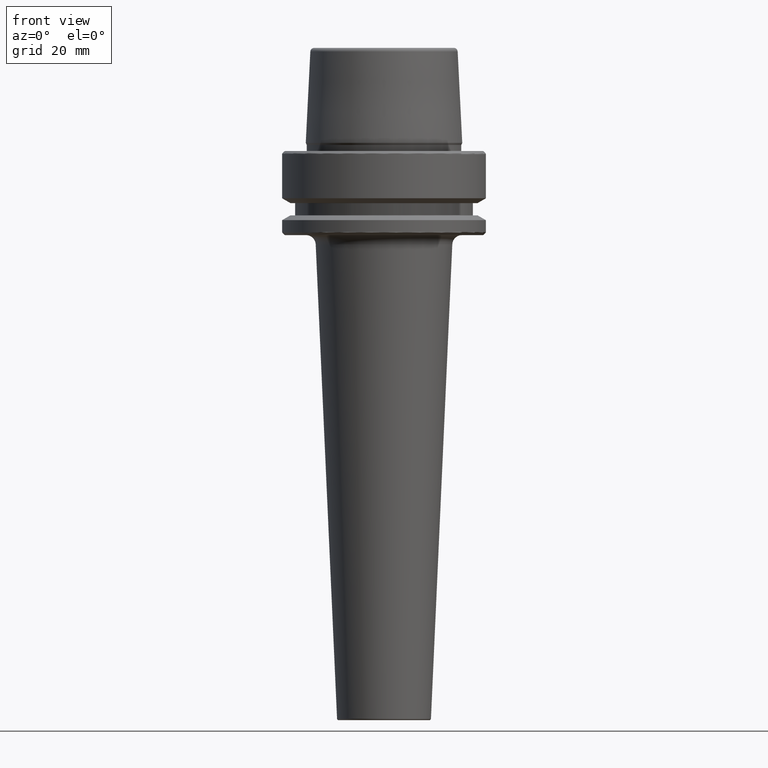
[diagram: clean part render]
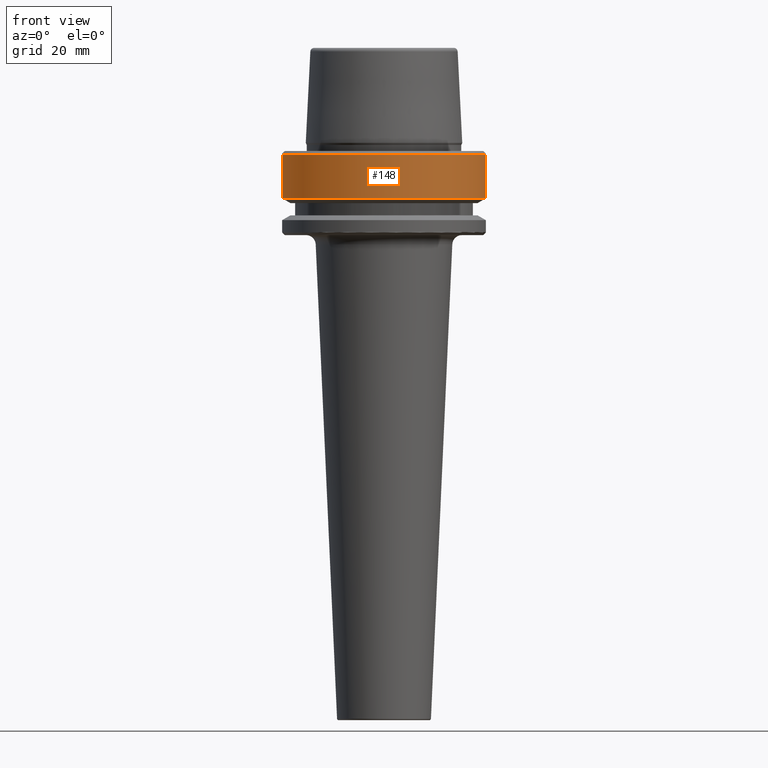
[diagram: same view with one face highlighted and labeled with its STEP entity id]
A machine part, front view. The second image highlights one B-rep face of the part: STEP entity #148.
In plain terms, the highlighted cylindrical surface (partial cylindrical patch) has radius 31.5 mm, axis along (-0, -0, 1).
Its self-contained STEP definition (entity closure, byte-faithful):
#45 = CARTESIAN_POINT ( 'NONE',  ( -31.50000000000000000, 3.857637417314162700E-015, 78.96908074195309300 ) ) ;
#52 = CARTESIAN_POINT ( 'NONE',  ( 0.0000000000000000000, 0.0000000000000000000, -14.62250092524070100 ) ) ;
#127 = LINE ( 'NONE', #1210, #664 ) ;
#129 = DIRECTION ( 'NONE',  ( -0.0000000000000000000, -0.0000000000000000000, 1.000000000000000000 ) ) ;
#148 = ADVANCED_FACE ( 'NONE', ( #309 ), #548, .T. ) ;
#169 = CIRCLE ( 'NONE', #934, 31.50000000000000700 ) ;
#187 = EDGE_CURVE ( 'NONE', #473, #522, #804, .T. ) ;
#191 = EDGE_CURVE ( 'NONE', #473, #1177, #361, .T. ) ;
#309 = FACE_OUTER_BOUND ( 'NONE', #1127, .T. ) ;
#341 = ORIENTED_EDGE ( 'NONE', *, *, #191, .T. ) ;
#344 = DIRECTION ( 'NONE',  ( 1.000000000000000000, 0.0000000000000000000, 0.0000000000000000000 ) ) ;
#361 = CIRCLE ( 'NONE', #458, 31.50000000000000000 ) ;
#382 = ORIENTED_EDGE ( 'NONE', *, *, #187, .F. ) ;
#386 = DIRECTION ( 'NONE',  ( -0.0000000000000000000, -0.0000000000000000000, 1.000000000000000000 ) ) ;
#408 = DIRECTION ( 'NONE',  ( -0.0000000000000000000, -0.0000000000000000000, 1.000000000000000000 ) ) ;
#458 = AXIS2_PLACEMENT_3D ( 'NONE', #52, #742, #344 ) ;
#473 = VERTEX_POINT ( 'NONE', #1040 ) ;
#482 = CARTESIAN_POINT ( 'NONE',  ( 31.50000000000000000, 0.0000000000000000000, -14.62250092524070100 ) ) ;
#500 = CARTESIAN_POINT ( 'NONE',  ( 0.0000000000000000000, 0.0000000000000000000, 78.96908074195309300 ) ) ;
#522 = VERTEX_POINT ( 'NONE', #675 ) ;
#548 = CYLINDRICAL_SURFACE ( 'NONE', #1074, 31.50000000000000000 ) ;
#661 = VERTEX_POINT ( 'NONE', #917 ) ;
#664 = VECTOR ( 'NONE', #408, 1000.000000000000000 ) ;
#675 = CARTESIAN_POINT ( 'NONE',  ( -31.50000000000000700, 3.857637417314163500E-015, -0.9656854249492363700 ) ) ;
#686 = VECTOR ( 'NONE', #861, 1000.000000000000000 ) ;
#742 = DIRECTION ( 'NONE',  ( -0.0000000000000000000, -0.0000000000000000000, 1.000000000000000000 ) ) ;
#778 = ORIENTED_EDGE ( 'NONE', *, *, #1120, .T. ) ;
#804 = LINE ( 'NONE', #45, #686 ) ;
#809 = DIRECTION ( 'NONE',  ( 1.000000000000000000, 0.0000000000000000000, 0.0000000000000000000 ) ) ;
#861 = DIRECTION ( 'NONE',  ( -0.0000000000000000000, -0.0000000000000000000, 1.000000000000000000 ) ) ;
#917 = CARTESIAN_POINT ( 'NONE',  ( 31.50000000000000700, 0.0000000000000000000, -0.9656854249492363700 ) ) ;
#934 = AXIS2_PLACEMENT_3D ( 'NONE', #971, #129, #809 ) ;
#968 = DIRECTION ( 'NONE',  ( 1.000000000000000000, 0.0000000000000000000, 0.0000000000000000000 ) ) ;
#971 = CARTESIAN_POINT ( 'NONE',  ( 0.0000000000000000000, 0.0000000000000000000, -0.9656854249492363700 ) ) ;
#1040 = CARTESIAN_POINT ( 'NONE',  ( -31.50000000000000000, 3.857637417314162700E-015, -14.62250092524070100 ) ) ;
#1074 = AXIS2_PLACEMENT_3D ( 'NONE', #500, #386, #968 ) ;
#1120 = EDGE_CURVE ( 'NONE', #1177, #661, #127, .T. ) ;
#1126 = EDGE_CURVE ( 'NONE', #522, #661, #169, .T. ) ;
#1127 = EDGE_LOOP ( 'NONE', ( #382, #341, #778, #1137 ) ) ;
#1137 = ORIENTED_EDGE ( 'NONE', *, *, #1126, .F. ) ;
#1177 = VERTEX_POINT ( 'NONE', #482 ) ;
#1210 = CARTESIAN_POINT ( 'NONE',  ( 31.50000000000000000, 0.0000000000000000000, 78.96908074195309300 ) ) ;